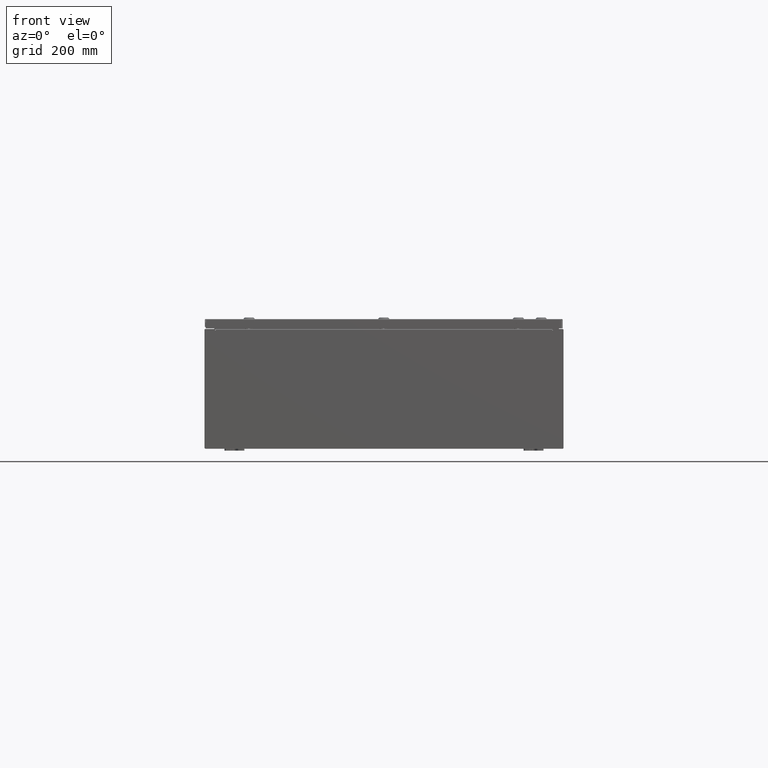
[diagram: clean part render]
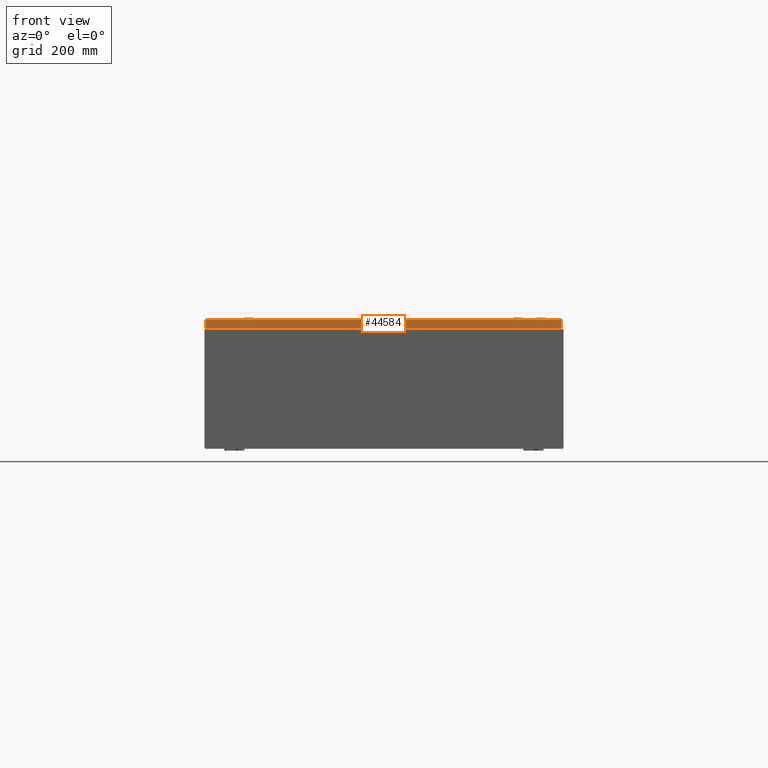
[diagram: same view with one face highlighted and labeled with its STEP entity id]
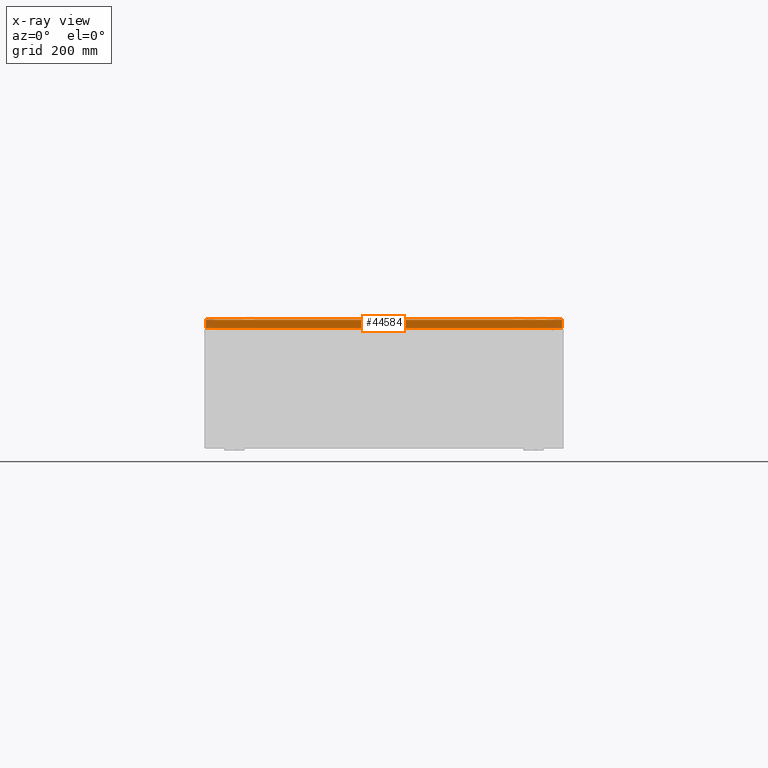
[diagram: x-ray of the same camera — body ghosted, the highlighted face saturated]
A machine part, front view. The second image highlights one B-rep face of the part: STEP entity #44584.
The next image is the same camera in x-ray: the body ghosted, the highlighted face saturated — about 0% of this face is hidden behind the body in this view.
In plain terms, the highlighted planar face has unit normal (-0, 1, -0).
Its self-contained STEP definition (entity closure, byte-faithful):
#2252 = ORIENTED_EDGE ( 'NONE', *, *, #42974, .F. ) ;
#4573 = DIRECTION ( 'NONE',  ( -1.000000000000000000, -8.758115402030108600E-047, 1.218385167906012900E-016 ) ) ;
#11577 = DIRECTION ( 'NONE',  ( 1.000000000000000000, 6.170925750089155900E-031, -3.189293793798686700E-045 ) ) ;
#12208 = LINE ( 'NONE', #42021, #67366 ) ;
#12568 = EDGE_LOOP ( 'NONE', ( #37408, #46101, #27975, #2252 ) ) ;
#14515 = EDGE_CURVE ( 'NONE', #30398, #56601, #12208, .T. ) ;
#16266 = LINE ( 'NONE', #55036, #55600 ) ;
#17273 = VERTEX_POINT ( 'NONE', #27476 ) ;
#21358 = CARTESIAN_POINT ( 'NONE',  ( -17.84865786437626800, -29.93749999999999300, -0.9376999999999954300 ) ) ;
#22737 = CARTESIAN_POINT ( 'NONE',  ( 17.84865786437626800, -29.93749999999998900, -0.08769999999999550400 ) ) ;
#26204 = DIRECTION ( 'NONE',  ( -6.170925750089155000E-031, 1.000000000000000000, -5.064839849203732200E-015 ) ) ;
#27476 = CARTESIAN_POINT ( 'NONE',  ( -17.84865786437626800, -29.93749999999998900, -0.08769999999999550400 ) ) ;
#27975 = ORIENTED_EDGE ( 'NONE', *, *, #14515, .F. ) ;
#30398 = VERTEX_POINT ( 'NONE', #62330 ) ;
#31915 = CARTESIAN_POINT ( 'NONE',  ( 17.84865786437626800, -29.93749999999998900, -0.07469999999999962800 ) ) ;
#34203 = VECTOR ( 'NONE', #63900, 39.37007874015748100 ) ;
#37408 = ORIENTED_EDGE ( 'NONE', *, *, #57958, .F. ) ;
#40583 = LINE ( 'NONE', #43605, #68929 ) ;
#42021 = CARTESIAN_POINT ( 'NONE',  ( 17.93750000000000000, -29.93749999999999300, -0.9376999999999997600 ) ) ;
#42373 = FACE_OUTER_BOUND ( 'NONE', #12568, .T. ) ;
#42974 = EDGE_CURVE ( 'NONE', #52691, #30398, #50067, .T. ) ;
#43605 = CARTESIAN_POINT ( 'NONE',  ( 17.93750000000000000, -29.93749999999998900, -0.08769999999999550400 ) ) ;
#44584 = ADVANCED_FACE ( 'NONE', ( #42373 ), #47413, .F. ) ;
#46101 = ORIENTED_EDGE ( 'NONE', *, *, #66503, .T. ) ;
#47413 = PLANE ( 'NONE',  #67547 ) ;
#49619 = DIRECTION ( 'NONE',  ( 0.0000000000000000000, -5.064839849203732200E-015, -1.000000000000000000 ) ) ;
#50067 = LINE ( 'NONE', #31915, #34203 ) ;
#52691 = VERTEX_POINT ( 'NONE', #22737 ) ;
#55036 = CARTESIAN_POINT ( 'NONE',  ( -17.84865786437626800, -29.93749999999998900, 1.518894566415482600E-013 ) ) ;
#55600 = VECTOR ( 'NONE', #49619, 39.37007874015748100 ) ;
#56601 = VERTEX_POINT ( 'NONE', #21358 ) ;
#57958 = EDGE_CURVE ( 'NONE', #17273, #52691, #40583, .T. ) ;
#58172 = CARTESIAN_POINT ( 'NONE',  ( 1.847420896432940200E-029, -29.93749999999998900, 1.518894566415482600E-013 ) ) ;
#62330 = CARTESIAN_POINT ( 'NONE',  ( 17.84865786437626800, -29.93749999999999300, -0.9376999999999997600 ) ) ;
#63534 = DIRECTION ( 'NONE',  ( 0.0000000000000000000, 5.064839849203732200E-015, 1.000000000000000000 ) ) ;
#63900 = DIRECTION ( 'NONE',  ( -0.0000000000000000000, -5.064839849203732200E-015, -1.000000000000000000 ) ) ;
#66503 = EDGE_CURVE ( 'NONE', #17273, #56601, #16266, .T. ) ;
#67366 = VECTOR ( 'NONE', #4573, 39.37007874015748100 ) ;
#67547 = AXIS2_PLACEMENT_3D ( 'NONE', #58172, #26204, #63534 ) ;
#68929 = VECTOR ( 'NONE', #11577, 39.37007874015748100 ) ;